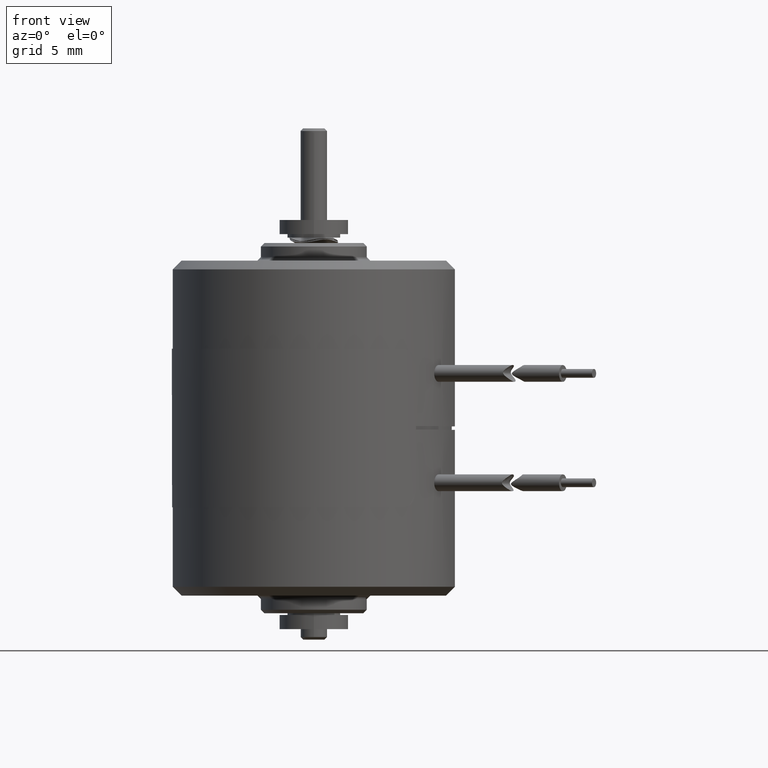
[diagram: clean part render]
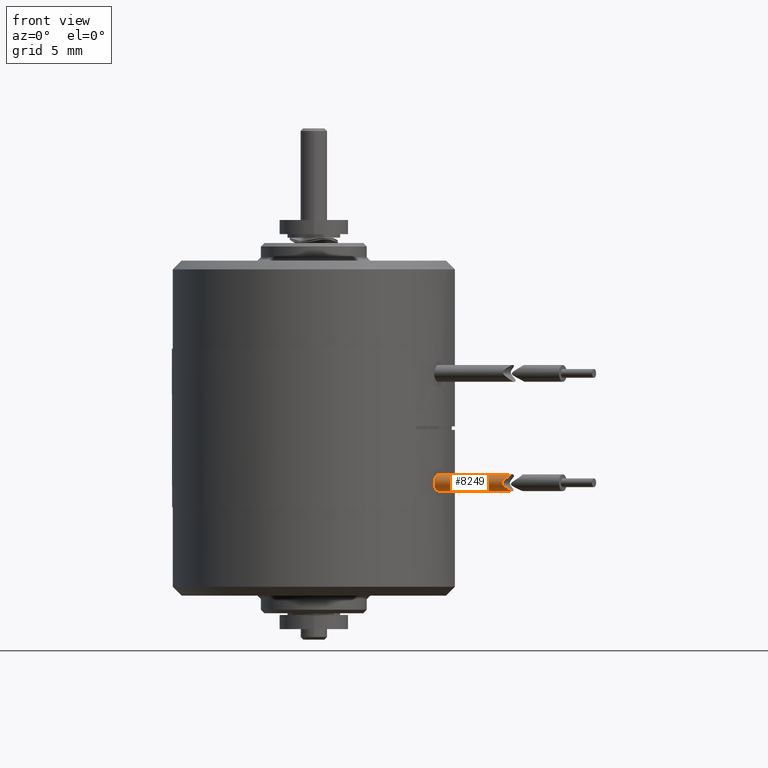
[diagram: same view with one face highlighted and labeled with its STEP entity id]
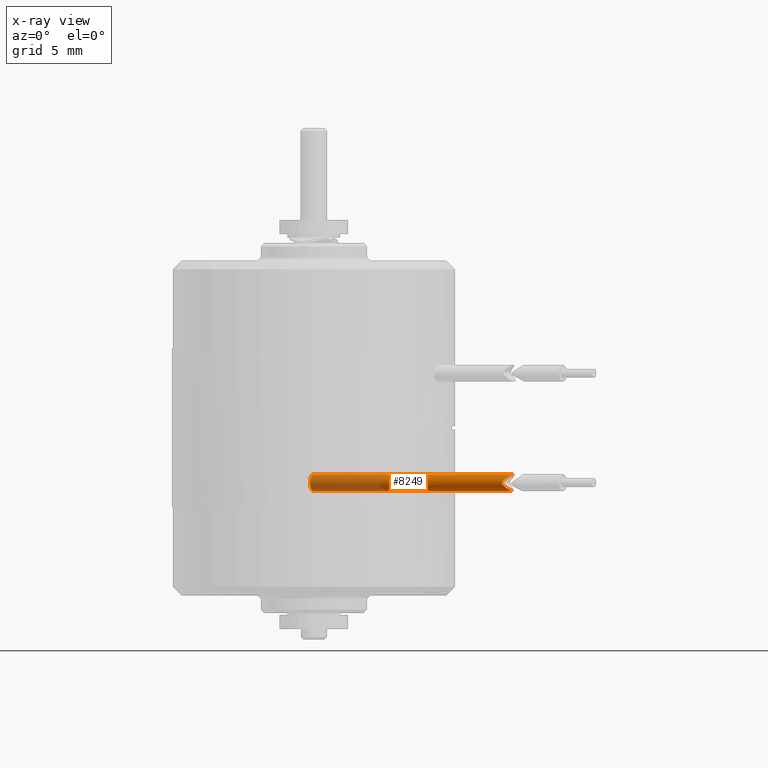
[diagram: x-ray of the same camera — body ghosted, the highlighted face saturated]
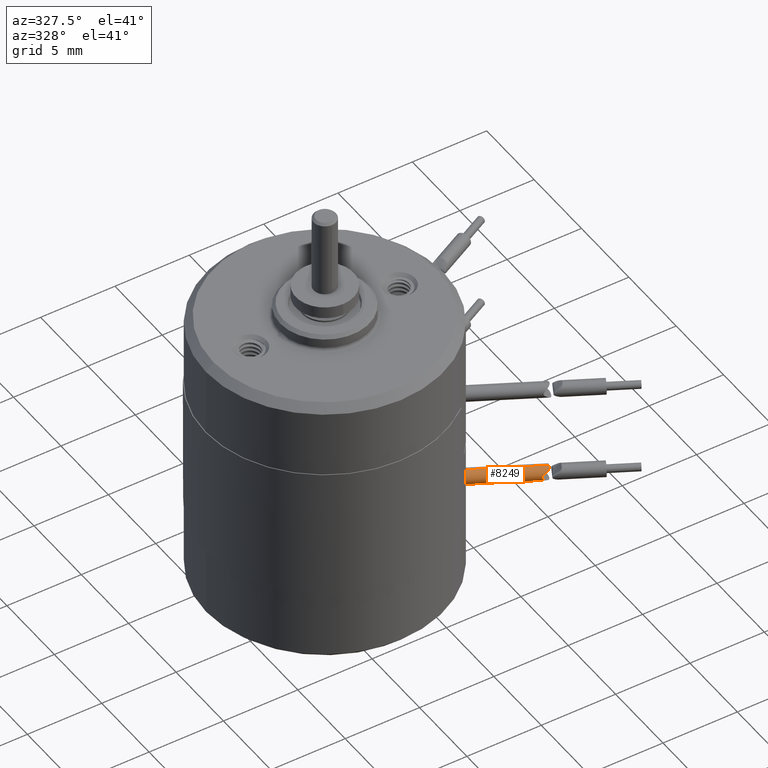
[diagram: same view with one face highlighted and labeled with its STEP entity id]
A machine part, front view. The second image highlights one B-rep face of the part: STEP entity #8249.
The next image is the same camera in x-ray: the body ghosted, the highlighted face saturated — about 37% of this face is hidden behind the body in this view.
A second angle (auxiliary view) of the same face is appended — the face is thin or edge-on in the first view.
In plain terms, the highlighted cylindrical surface (edge-blend (fillet) strip) has radius 0.475 mm, axis along (0.8829, -0.4695, 0).
Its self-contained STEP definition (entity closure, byte-faithful):
#8086=CARTESIAN_POINT('',(0.E0,0.E0,-3.1E0));
#8087=DIRECTION('',(8.829475928589E-1,4.694715627859E-1,0.E0));
#8088=DIRECTION('',(0.E0,0.E0,1.E0));
#8089=AXIS2_PLACEMENT_3D('',#8086,#8087,#8088);
#8091=DIRECTION('',(-8.829475928589E-1,-4.694715627860E-1,2.978268272074E-14));
#8092=VECTOR('',#8091,1.276380530243E1);
#8093=CARTESIAN_POINT('',(1.126977116750E1,5.992243622428E0,-2.625E0));
#8094=LINE('',#8093,#8092);
#8095=CARTESIAN_POINT('',(1.126977116750E1,5.992243622428E0,-2.625E0));
#8137=CARTESIAN_POINT('',(1.127593336680E1,5.995520121914E0,-3.575E0));
#8139=CARTESIAN_POINT('',(1.126977116750E1,5.992243622428E0,-2.625E0));
#8140=CARTESIAN_POINT('',(1.127782652753E1,5.977093693641E0,-2.625E0));
#8141=CARTESIAN_POINT('',(1.129336289134E1,5.946859644508E0,-2.626850345751E0));
#8142=CARTESIAN_POINT('',(1.131447818418E1,5.901606736278E0,-2.634973887243E0));
#8143=CARTESIAN_POINT('',(1.133158175215E1,5.857564897925E0,-2.647806917082E0));
#8144=CARTESIAN_POINT('',(1.134312443646E1,5.816025940417E0,-2.663962909542E0));
#8145=CARTESIAN_POINT('',(1.134899342942E1,5.777124889132E0,-2.682173553391E0));
#8146=CARTESIAN_POINT('',(1.134963352698E1,5.738241121151E0,-2.702939181698E0));
#8147=CARTESIAN_POINT('',(1.134442630829E1,5.697457652075E0,-2.727179460745E0));
#8148=CARTESIAN_POINT('',(1.133242234197E1,5.653945836786E0,-2.755546989704E0));
#8149=CARTESIAN_POINT('',(1.131203065243E1,5.606423386651E0,-2.789470716021E0));
#8150=CARTESIAN_POINT('',(1.128463117887E1,5.559107926152E0,-2.826737828397E0));
#8151=CARTESIAN_POINT('',(1.125544894374E1,5.517680948046E0,-2.862981845928E0));
#8152=CARTESIAN_POINT('',(1.122813819218E1,5.483571757606E0,-2.896309759924E0));
#8153=CARTESIAN_POINT('',(1.120382211889E1,5.455804689149E0,-2.926813457796E0));
#8154=CARTESIAN_POINT('',(1.118184126868E1,5.432384366446E0,-2.956197926128E0));
#8155=CARTESIAN_POINT('',(1.116282457600E1,5.413267628108E0,-2.984352568824E0));
#8156=CARTESIAN_POINT('',(1.114703038301E1,5.398160633421E0,-3.011371593781E0));
#8157=CARTESIAN_POINT('',(1.113455565469E1,5.386779396995E0,-3.037568476275E0));
#8158=CARTESIAN_POINT('',(1.112584075484E1,5.379223214013E0,-3.062200861698E0));
#8159=CARTESIAN_POINT('',(1.112065579289E1,5.375047215010E0,-3.085245485527E0));
#8160=CARTESIAN_POINT('',(1.111871511862E1,5.373827109843E0,-3.107278403051E0));
#8161=CARTESIAN_POINT('',(1.111963961897E1,5.375280501664E0,-3.129553989454E0));
#8162=CARTESIAN_POINT('',(1.112353464608E1,5.379667640932E0,-3.153304146031E0));
#8163=CARTESIAN_POINT('',(1.113090916514E1,5.387664548884E0,-3.179172392581E0));
#8164=CARTESIAN_POINT('',(1.114203200219E1,5.399801753136E0,-3.206863595659E0));
#8165=CARTESIAN_POINT('',(1.115655518051E1,5.416061189792E0,-3.235551520923E0));
#8166=CARTESIAN_POINT('',(1.117431087218E1,5.436733095108E0,-3.265392061876E0));
#8167=CARTESIAN_POINT('',(1.119504546262E1,5.462200511088E0,-3.296484288615E0));
#8168=CARTESIAN_POINT('',(1.121824667997E1,5.492756208507E0,-3.328816154893E0));
#8169=CARTESIAN_POINT('',(1.124400999019E1,5.530045677923E0,-3.363475355661E0));
#8170=CARTESIAN_POINT('',(1.127135049515E1,5.575291423393E0,-3.400595307518E0));
#8171=CARTESIAN_POINT('',(1.129735896222E1,5.628400811290E0,-3.438891284732E0));
#8172=CARTESIAN_POINT('',(1.131641334596E1,5.682183469522E0,-3.472877569382E0));
#8173=CARTESIAN_POINT('',(1.132744154551E1,5.732654315627E0,-3.500847711493E0));
#8174=CARTESIAN_POINT('',(1.133162246963E1,5.779917044213E0,-3.523574327461E0));
#8175=CARTESIAN_POINT('',(1.133008394513E1,5.824718667719E0,-3.541834070258E0));
#8176=CARTESIAN_POINT('',(1.132341589514E1,5.868761481459E0,-3.556372729973E0));
#8177=CARTESIAN_POINT('',(1.131201897608E1,5.911939710125E0,-3.566970520477E0));
#8178=CARTESIAN_POINT('',(1.129637378548E1,5.954174428655E0,-3.573487041110E0));
#8179=CARTESIAN_POINT('',(1.128318655906E1,5.981878851267E0,-3.575E0));
#8180=CARTESIAN_POINT('',(1.127593336680E1,5.995520121914E0,-3.575E0));
#8182=DIRECTION('',(-8.829475928589E-1,-4.694715627859E-1,0.E0));
#8183=VECTOR('',#8182,1.277078442480E1);
#8184=CARTESIAN_POINT('',(1.127593336680E1,5.995520121914E0,-3.575E0));
#8185=LINE('',#8184,#8183);
#8186=CARTESIAN_POINT('',(0.E0,0.E0,-3.575E0));
#8187=CARTESIAN_POINT('',(0.E0,0.E0,-2.625E0));
#8188=VERTEX_POINT('',#8186);
#8189=VERTEX_POINT('',#8187);
#8190=VERTEX_POINT('',#8095);
#8191=VERTEX_POINT('',#8137);
#8238=CARTESIAN_POINT('',(0.E0,0.E0,-3.1E0));
#8239=DIRECTION('',(8.829475928589E-1,4.694715627859E-1,0.E0));
#8240=DIRECTION('',(0.E0,0.E0,-1.E0));
#8241=AXIS2_PLACEMENT_3D('',#8238,#8239,#8240);
#8242=CYLINDRICAL_SURFACE('',#8241,4.75E-1);
#8243=ORIENTED_EDGE('',*,*,#8233,.T.);
#8244=ORIENTED_EDGE('',*,*,#8214,.T.);
#8245=ORIENTED_EDGE('',*,*,#8199,.F.);
#8246=ORIENTED_EDGE('',*,*,#8211,.F.);
#8247=EDGE_LOOP('',(#8243,#8244,#8245,#8246));
#8248=FACE_OUTER_BOUND('',#8247,.F.);
#8249=ADVANCED_FACE('',(#8248),#8242,.T.);
#8090=CIRCLE('',#8089,4.75E-1);
#8181=B_SPLINE_CURVE_WITH_KNOTS('',3,(#8139,#8140,#8141,#8142,#8143,#8144,#8145,
#8146,#8147,#8148,#8149,#8150,#8151,#8152,#8153,#8154,#8155,#8156,#8157,#8158,
#8159,#8160,#8161,#8162,#8163,#8164,#8165,#8166,#8167,#8168,#8169,#8170,#8171,
#8172,#8173,#8174,#8175,#8176,#8177,#8178,#8179,#8180),.UNSPECIFIED.,.F.,.F.,(4,
1,1,1,1,1,1,1,1,1,1,1,1,1,1,1,1,1,1,1,1,1,1,1,1,1,1,1,1,1,1,1,1,1,1,1,1,1,1,4),(
0.E0,2.564102564103E-2,5.128205128205E-2,7.692307692308E-2,1.025641025641E-1,
1.282051282051E-1,1.538461538462E-1,1.794871794872E-1,2.051282051282E-1,
2.307692307692E-1,2.564102564103E-1,2.820512820513E-1,3.076923076923E-1,
3.333333333333E-1,3.589743589744E-1,3.846153846154E-1,4.102564102564E-1,
4.358974358974E-1,4.615384615385E-1,4.871794871795E-1,5.128205128205E-1,
5.384615384615E-1,5.641025641026E-1,5.897435897436E-1,6.153846153846E-1,
6.410256410256E-1,6.666666666667E-1,6.923076923077E-1,7.179487179487E-1,
7.435897435897E-1,7.692307692308E-1,7.948717948718E-1,8.205128205128E-1,
8.461538461538E-1,8.717948717949E-1,8.974358974359E-1,9.230769230769E-1,
9.487179487179E-1,9.743589743590E-1,1.E0),.UNSPECIFIED.);
#8199=EDGE_CURVE('',#8189,#8188,#8090,.T.);
#8211=EDGE_CURVE('',#8190,#8189,#8094,.T.);
#8214=EDGE_CURVE('',#8191,#8188,#8185,.T.);
#8233=EDGE_CURVE('',#8190,#8191,#8181,.T.);